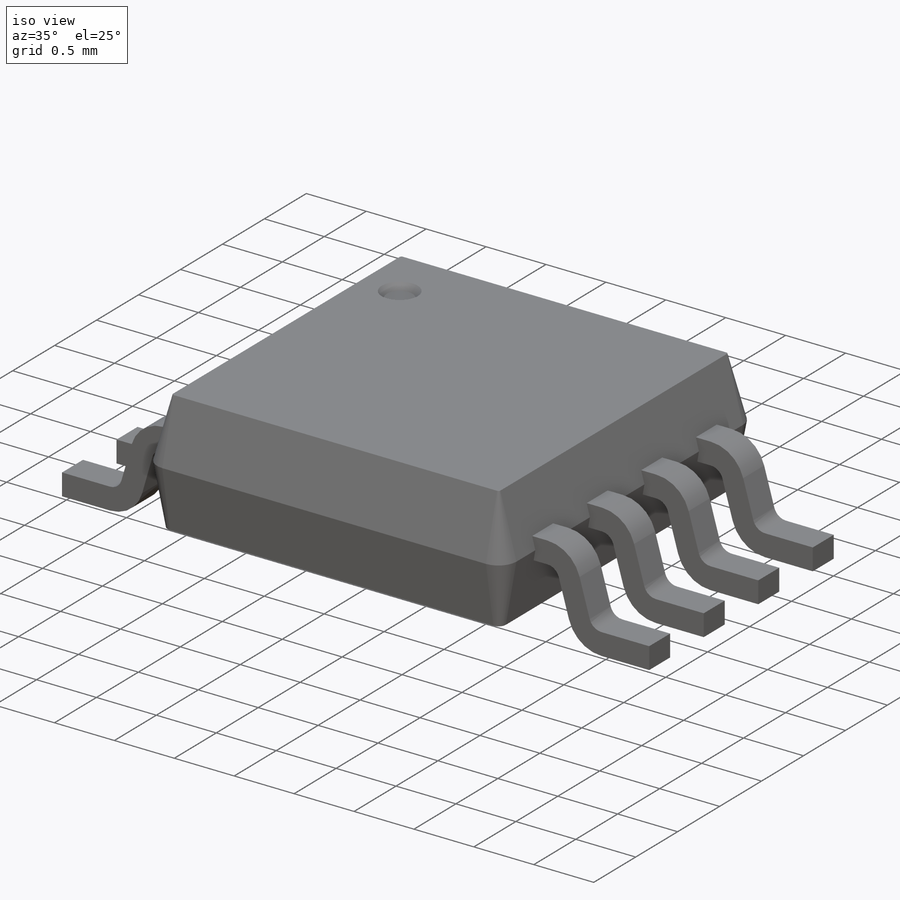
[diagram: iso view]
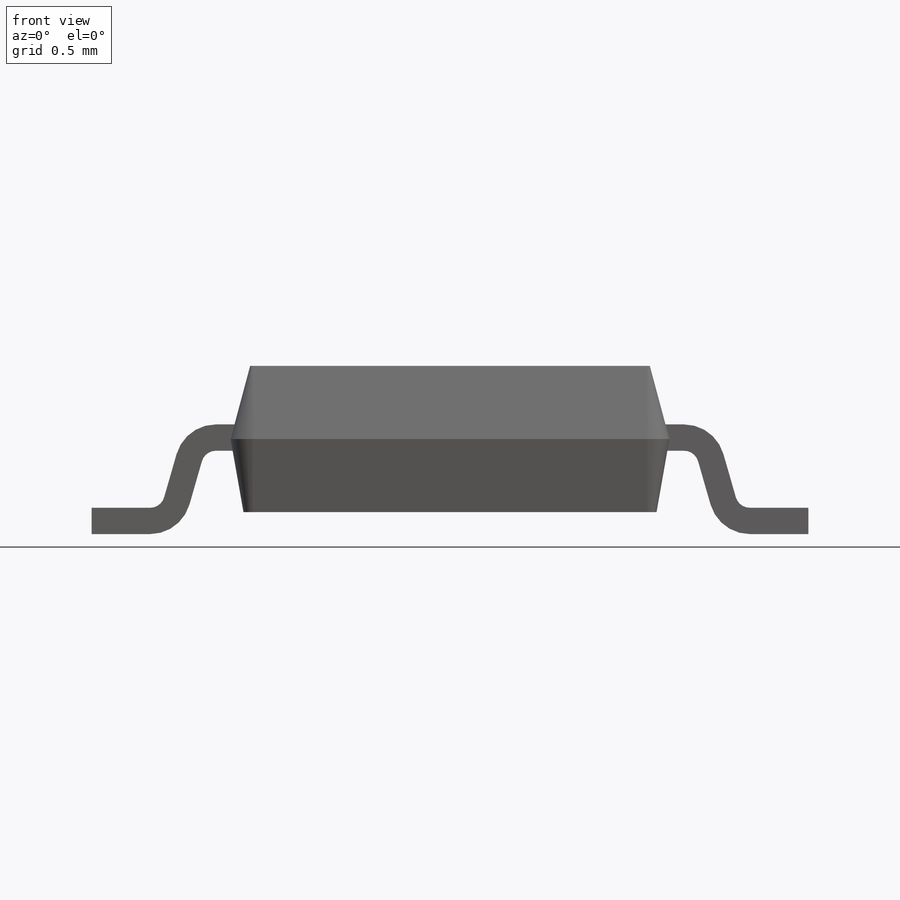
[diagram: front view]
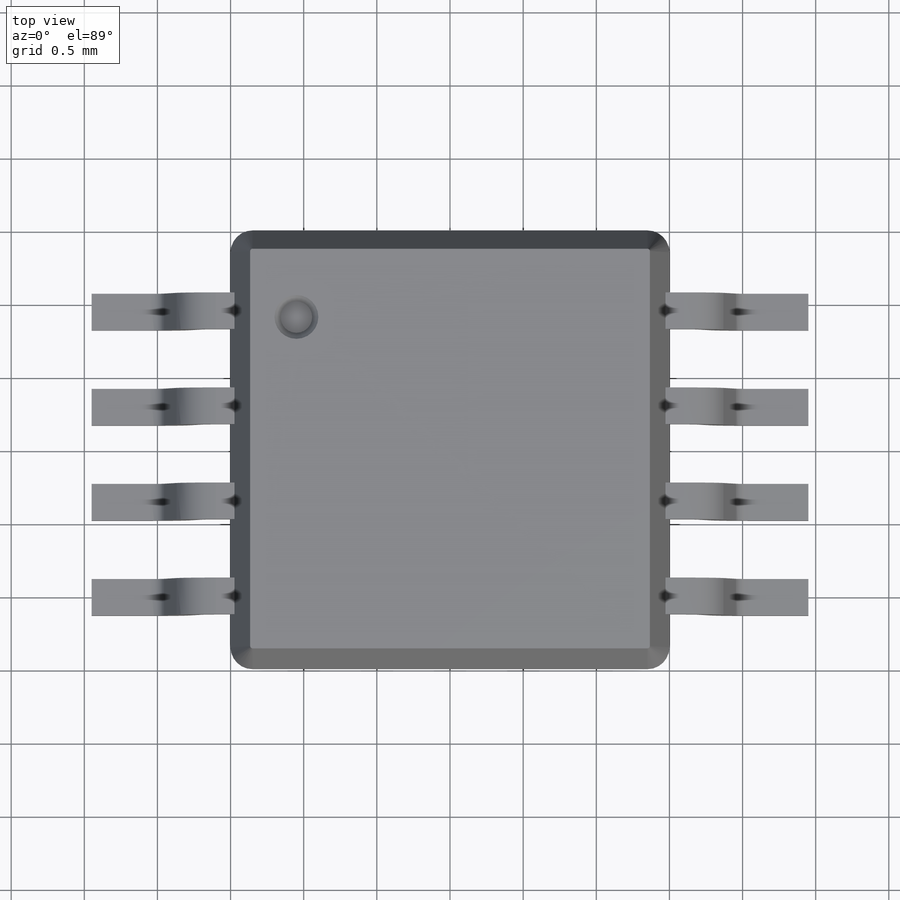
[diagram: top view]
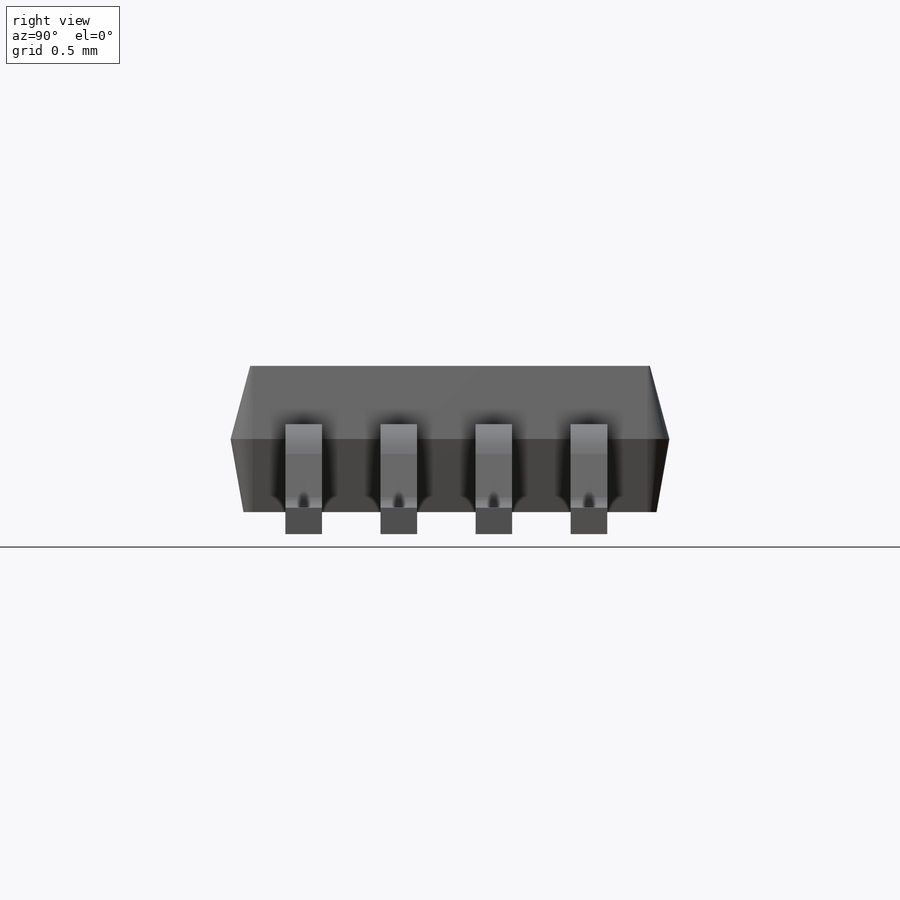
[diagram: right view]
SOLIDWORKS PART (.sldprt)
format: sldprt  version: not decoded by parser v0  size: 674,304 bytes
history: native  units: mm
features: sketch x3, extrude x2, material x1, pattern_linear x1, cut_extrude x1 + 2 further entries (+11 scaffold rows collapsed)
feature tree (21):
  scaffold x11  (default folders/planes/origin — collapsed)
  material  "Material <not specified>"
  "SurfaceBodyFolder1"
  "SolidBodyFolder1"
  sketch  "Sketch1"  dims[c1.D1=0.15mm c1.D2=0.15mm c1.D3=0.15mm c1.D4=0.15mm c2.D1=3.0mm c2.D5=3.0mm c2.D6=3.0mm]
  extrude  "Extrude1"  Depth=0.5mm
  sketch  "Sketch2"  dims[D1=~0.243469mm]
  sketch  "Sketch3"  dims[c1.D1=0.1mm c1.D2=0.28mm c1.D3=0.1mm c2.D1=0.28mm c2.D2=0.1mm c3.D1=0.04mm c3.D2=0.22mm c4.D1=0.1mm c4.D2=0.28mm c4.D3=0.28mm c4.D4=0.28mm c5.D1=0.18mm c5.D2=1.0mm c5.D4=0.75mm c5.D5=0.4mm c5.D6=2.45mm c5.D7=0.45mm c6.D1=0.45mm c6.D2=0.75mm c6.D3=0.18mm c6.D6=1.0mm c6.D7=2.45mm]
  extrude  "ICE1"  Depth=0.125mm
  pattern_linear  "LPattern1"  Count1=4 Count2=1 Spacing1=0.65mm Spacing2=10mm
  cut_extrude  "ICE2"  Depth=0.05mm
decode coverage: 7 of 7 modeling features carry decoded parameters; 2 rows unclassified (native names shown)
note: ~ marks probable driven/reference dimensions
note: suppression state not decoded; provenance and decode notes live in map.json
